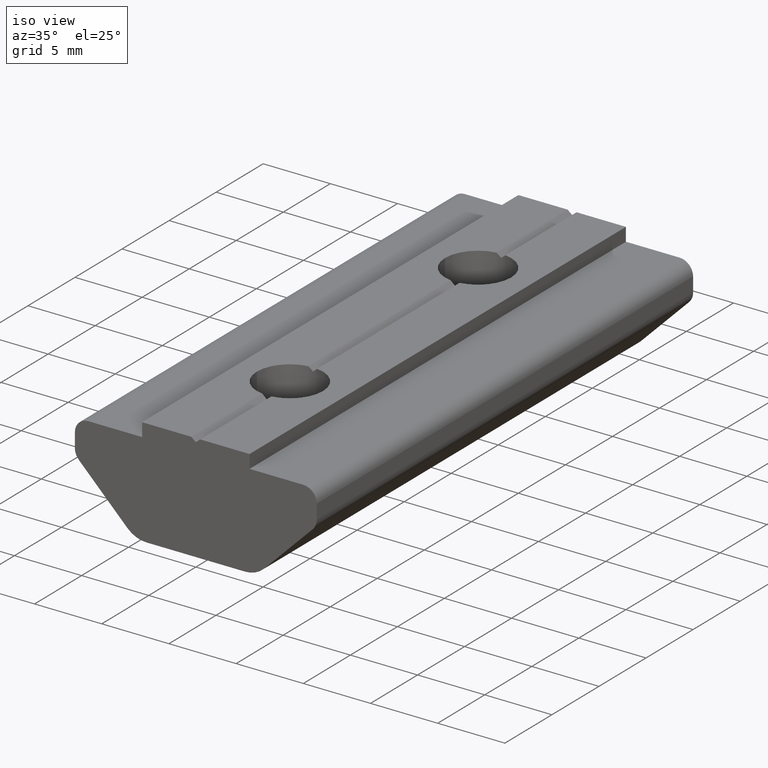
[diagram: clean part render]
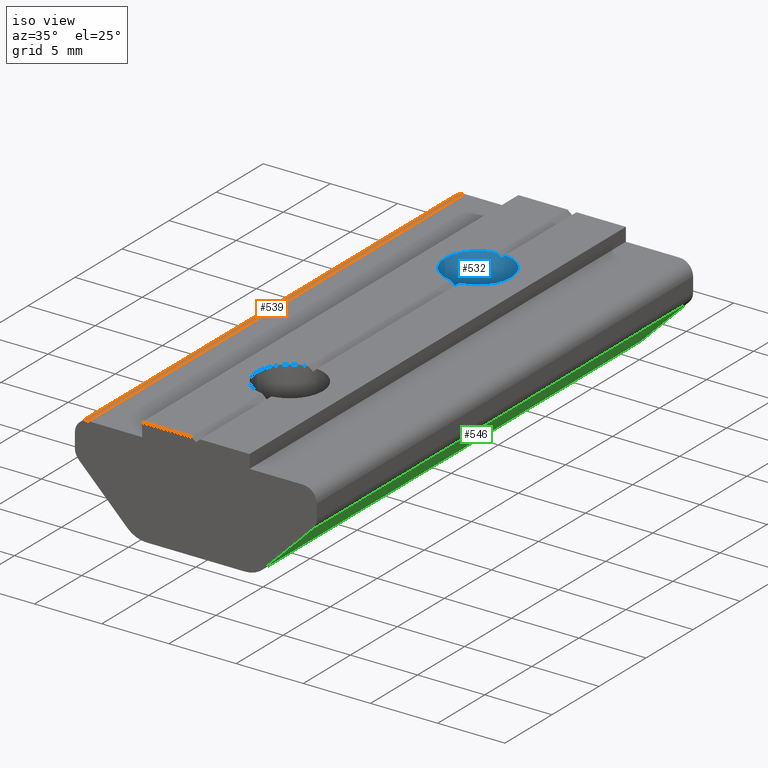
[diagram: same view with three faces highlighted in distinct colors, each labeled with its STEP entity id]
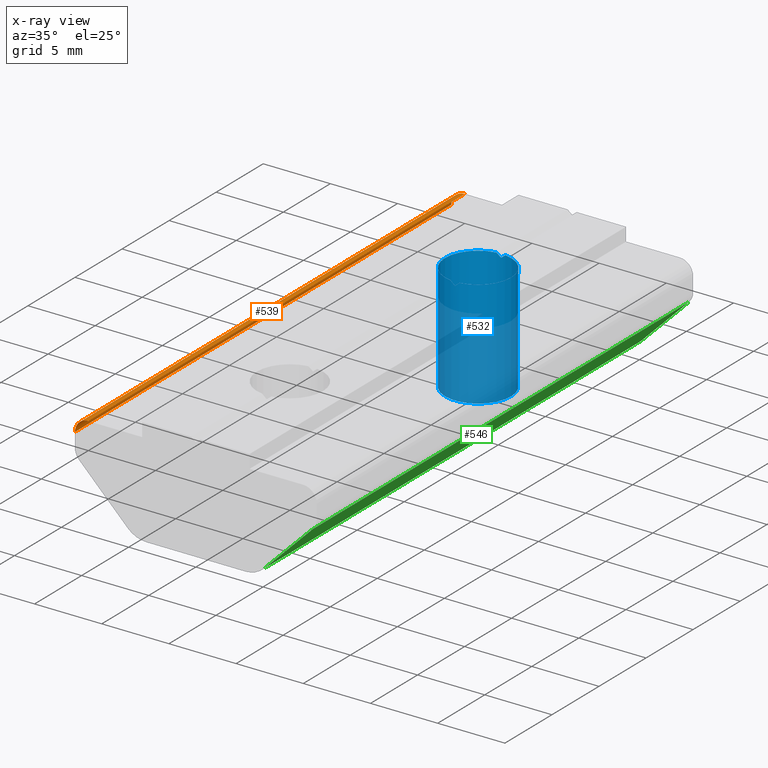
[diagram: x-ray of the same camera — body ghosted, the three highlighted faces saturated]
A machine part, iso view with three faces highlighted in distinct colors.
The next image is the same camera in x-ray (body ghosted, the three faces saturated) — at least one of them is partly hidden behind the body in this view.
Their STEP definitions:

[orange] entity #539 — the highlighted cylindrical surface (edge-blend (fillet) strip) has radius 1 mm, axis along (0, -1, 0).
#44=FACE_OUTER_BOUND('',#71,.T.);
#71=EDGE_LOOP('',(#411,#412,#413,#414));
#107=LINE('',#866,#160);
#110=LINE('',#874,#163);
#160=VECTOR('',#701,40.);
#163=VECTOR('',#708,40.);
#206=CIRCLE('',#606,0.999999782051095);
#207=CIRCLE('',#607,0.999999782051095);
#249=VERTEX_POINT('',#863);
#250=VERTEX_POINT('',#865);
#252=VERTEX_POINT('',#871);
#253=VERTEX_POINT('',#873);
#311=EDGE_CURVE('',#249,#250,#107,.T.);
#314=EDGE_CURVE('',#249,#252,#206,.T.);
#315=EDGE_CURVE('',#252,#253,#110,.T.);
#316=EDGE_CURVE('',#250,#253,#207,.T.);
#411=ORIENTED_EDGE('',*,*,#314,.T.);
#412=ORIENTED_EDGE('',*,*,#315,.T.);
#413=ORIENTED_EDGE('',*,*,#316,.F.);
#414=ORIENTED_EDGE('',*,*,#311,.F.);
#525=CYLINDRICAL_SURFACE('',#605,0.999999782051095);
#539=ADVANCED_FACE('',(#44),#525,.T.);
#605=AXIS2_PLACEMENT_3D('',#870,#704,#705);
#606=AXIS2_PLACEMENT_3D('',#872,#706,#707);
#607=AXIS2_PLACEMENT_3D('',#875,#709,#710);
#701=DIRECTION('',(0.,-1.,0.));
#704=DIRECTION('center_axis',(0.,-1.,0.));
#705=DIRECTION('ref_axis',(1.,0.,0.));
#706=DIRECTION('center_axis',(0.,-1.,0.));
#707=DIRECTION('ref_axis',(1.,0.,0.));
#708=DIRECTION('',(0.,-1.,0.));
#709=DIRECTION('center_axis',(0.,-1.,0.));
#710=DIRECTION('ref_axis',(1.,0.,0.));
#863=CARTESIAN_POINT('',(-7.99999822003548,30.,6.99999845599995));
#865=CARTESIAN_POINT('',(-7.99999822003548,-10.,6.99999845599996));
#866=CARTESIAN_POINT('',(-7.99999822003548,30.,6.99999845599995));
#870=CARTESIAN_POINT('Origin',(-7.99999821193325,30.,5.99999867394888));
#871=CARTESIAN_POINT('',(-8.99999799398434,30.,5.999998678));
#872=CARTESIAN_POINT('Origin',(-7.99999821193325,30.,5.99999867394888));
#873=CARTESIAN_POINT('',(-8.99999799398434,-10.,5.999998678));
#874=CARTESIAN_POINT('',(-8.99999799398434,30.,5.999998678));
#875=CARTESIAN_POINT('Origin',(-7.99999821193325,-10.,5.99999867394888));

[blue] entity #532 — the highlighted cylindrical surface (bore or boss wall) has radius 2.4585 mm, axis along (0, 0, 1).
#37=FACE_OUTER_BOUND('',#64,.T.);
#64=EDGE_LOOP('',(#371,#372,#373,#374,#375,#376,#377,#378,#379,#380));
#93=LINE('',#835,#146);
#146=VECTOR('',#671,2.4585);
#202=CIRCLE('',#593,2.4585);
#203=CIRCLE('',#596,2.4585);
#204=CIRCLE('',#597,2.4585);
#205=CIRCLE('',#598,2.4585);
#222=ELLIPSE('',#591,3.14676989404295,2.4585);
#223=ELLIPSE('',#592,3.20333895379445,2.4585);
#224=ELLIPSE('',#594,3.20333895379445,2.4585);
#225=ELLIPSE('',#595,3.14676989404295,2.4585);
#234=VERTEX_POINT('',#821);
#235=VERTEX_POINT('',#822);
#236=VERTEX_POINT('',#824);
#237=VERTEX_POINT('',#826);
#238=VERTEX_POINT('',#828);
#239=VERTEX_POINT('',#830);
#240=VERTEX_POINT('',#832);
#241=VERTEX_POINT('',#834);
#289=EDGE_CURVE('',#234,#235,#222,.T.);
#290=EDGE_CURVE('',#236,#234,#223,.T.);
#291=EDGE_CURVE('',#237,#236,#202,.T.);
#292=EDGE_CURVE('',#238,#237,#224,.T.);
#293=EDGE_CURVE('',#239,#238,#225,.T.);
#294=EDGE_CURVE('',#240,#239,#203,.T.);
#295=EDGE_CURVE('',#240,#241,#93,.T.);
#296=EDGE_CURVE('',#241,#241,#204,.T.);
#297=EDGE_CURVE('',#235,#240,#205,.T.);
#371=ORIENTED_EDGE('',*,*,#289,.F.);
#372=ORIENTED_EDGE('',*,*,#290,.F.);
#373=ORIENTED_EDGE('',*,*,#291,.F.);
#374=ORIENTED_EDGE('',*,*,#292,.F.);
#375=ORIENTED_EDGE('',*,*,#293,.F.);
#376=ORIENTED_EDGE('',*,*,#294,.F.);
#377=ORIENTED_EDGE('',*,*,#295,.T.);
#378=ORIENTED_EDGE('',*,*,#296,.F.);
#379=ORIENTED_EDGE('',*,*,#295,.F.);
#380=ORIENTED_EDGE('',*,*,#297,.F.);
#524=CYLINDRICAL_SURFACE('',#590,2.4585);
#532=ADVANCED_FACE('',(#37),#524,.F.);
#590=AXIS2_PLACEMENT_3D('',#820,#657,#658);
#591=AXIS2_PLACEMENT_3D('',#823,#659,#660);
#592=AXIS2_PLACEMENT_3D('',#825,#661,#662);
#593=AXIS2_PLACEMENT_3D('',#827,#663,#664);
#594=AXIS2_PLACEMENT_3D('',#829,#665,#666);
#595=AXIS2_PLACEMENT_3D('',#831,#667,#668);
#596=AXIS2_PLACEMENT_3D('',#833,#669,#670);
#597=AXIS2_PLACEMENT_3D('',#836,#672,#673);
#598=AXIS2_PLACEMENT_3D('',#837,#674,#675);
#657=DIRECTION('center_axis',(0.,0.,1.));
#658=DIRECTION('ref_axis',(1.,0.,0.));
#659=DIRECTION('center_axis',(-0.624184046708014,-4.783944E-17,-0.781277336056287));
#660=DIRECTION('ref_axis',(0.781277336056287,0.,-0.624184046708014));
#661=DIRECTION('center_axis',(0.641072358860515,-4.699462E-17,-0.767480443206871));
#662=DIRECTION('ref_axis',(0.767480443206871,0.,0.641072358860515));
#663=DIRECTION('center_axis',(2.723567E-9,-6.123234E-17,-1.));
#664=DIRECTION('ref_axis',(1.,0.,2.723567E-9));
#665=DIRECTION('center_axis',(0.641072358860515,-4.699462E-17,-0.767480443206871));
#666=DIRECTION('ref_axis',(0.767480443206871,0.,0.641072358860515));
#667=DIRECTION('center_axis',(-0.624184046708014,-4.783944E-17,-0.781277336056287));
#668=DIRECTION('ref_axis',(0.781277336056287,0.,-0.624184046708014));
#669=DIRECTION('center_axis',(0.,0.,-1.));
#670=DIRECTION('ref_axis',(1.,0.,0.));
#671=DIRECTION('',(0.,0.,-1.));
#672=DIRECTION('center_axis',(0.,0.,1.));
#673=DIRECTION('ref_axis',(1.,0.,0.));
#674=DIRECTION('center_axis',(0.,0.,-1.));
#675=DIRECTION('ref_axis',(1.,0.,0.));
#820=CARTESIAN_POINT('Origin',(0.,20.,-36.5869934551465));
#821=CARTESIAN_POINT('',(8.015661E-9,17.5415,7.72573707488596));
#822=CARTESIAN_POINT('',(-0.343286605774693,17.5655849663018,7.99999823400003));
#823=CARTESIAN_POINT('Origin',(0.,20.,7.72573708128989));
#824=CARTESIAN_POINT('',(0.328340585124039,17.5635241207514,7.99999822400002));
#825=CARTESIAN_POINT('Origin',(0.,20.,7.72573706819051));
#826=CARTESIAN_POINT('',(0.328340585124039,22.4364758792486,7.99999822400002));
#827=CARTESIAN_POINT('Origin',(0.,20.,7.99999822310577));
#828=CARTESIAN_POINT('',(8.015661E-9,22.4585,7.72573707488595));
#829=CARTESIAN_POINT('Origin',(0.,20.,7.72573706819051));
#830=CARTESIAN_POINT('',(-0.343286605774694,22.4344150336982,7.99999823400003));
#831=CARTESIAN_POINT('Origin',(0.,20.,7.72573708128989));
#832=CARTESIAN_POINT('',(-2.4585,20.,7.99999823400003));
#833=CARTESIAN_POINT('Origin',(0.,20.,7.99999823400003));
#834=CARTESIAN_POINT('',(-2.4585,20.,0.));
#835=CARTESIAN_POINT('',(-2.4585,20.,-36.5869934551465));
#836=CARTESIAN_POINT('Origin',(0.,20.,0.));
#837=CARTESIAN_POINT('Origin',(0.,20.,7.99999823400003));

[green] entity #546 — the highlighted planar face has unit normal (0.7071, -0, -0.7071).
#26=PLANE('',#620);
#51=FACE_OUTER_BOUND('',#80,.T.);
#80=EDGE_LOOP('',(#441,#442,#443,#444));
#122=LINE('',#910,#175);
#123=LINE('',#914,#176);
#124=LINE('',#916,#177);
#125=LINE('',#917,#178);
#175=VECTOR('',#744,40.);
#176=VECTOR('',#749,5.12131921573452);
#177=VECTOR('',#750,40.);
#178=VECTOR('',#751,5.12131921573452);
#264=VERTEX_POINT('',#907);
#265=VERTEX_POINT('',#909);
#266=VERTEX_POINT('',#913);
#267=VERTEX_POINT('',#915);
#333=EDGE_CURVE('',#264,#265,#122,.T.);
#335=EDGE_CURVE('',#264,#266,#123,.T.);
#336=EDGE_CURVE('',#266,#267,#124,.T.);
#337=EDGE_CURVE('',#265,#267,#125,.T.);
#441=ORIENTED_EDGE('',*,*,#335,.T.);
#442=ORIENTED_EDGE('',*,*,#336,.T.);
#443=ORIENTED_EDGE('',*,*,#337,.F.);
#444=ORIENTED_EDGE('',*,*,#333,.F.);
#546=ADVANCED_FACE('',(#51),#26,.T.);
#620=AXIS2_PLACEMENT_3D('',#912,#747,#748);
#744=DIRECTION('',(0.,-1.,0.));
#747=DIRECTION('center_axis',(0.707106781186546,-4.32978E-17,-0.707106781186549));
#748=DIRECTION('ref_axis',(-0.707106781186549,0.,-0.707106781186546));
#749=DIRECTION('',(0.707106781186549,0.,0.707106781186546));
#750=DIRECTION('',(0.,-1.,0.));
#751=DIRECTION('',(0.707106781186549,0.,0.707106781186546));
#907=CARTESIAN_POINT('',(5.0857853089711,30.,0.585786309955436));
#909=CARTESIAN_POINT('',(5.0857853089711,-10.,0.585786309955439));
#910=CARTESIAN_POINT('',(5.0857853089711,30.,0.585786309955436));
#912=CARTESIAN_POINT('Origin',(5.0857853089711,30.,0.585786309955436));
#913=CARTESIAN_POINT('',(8.70710485503795,30.,4.20710585602228));
#914=CARTESIAN_POINT('',(5.0857853089711,30.,0.585786309955436));
#915=CARTESIAN_POINT('',(8.70710485503795,-10.,4.20710585602228));
#916=CARTESIAN_POINT('',(8.70710485503795,30.,4.20710585602228));
#917=CARTESIAN_POINT('',(5.0857853089711,-10.,0.585786309955439));